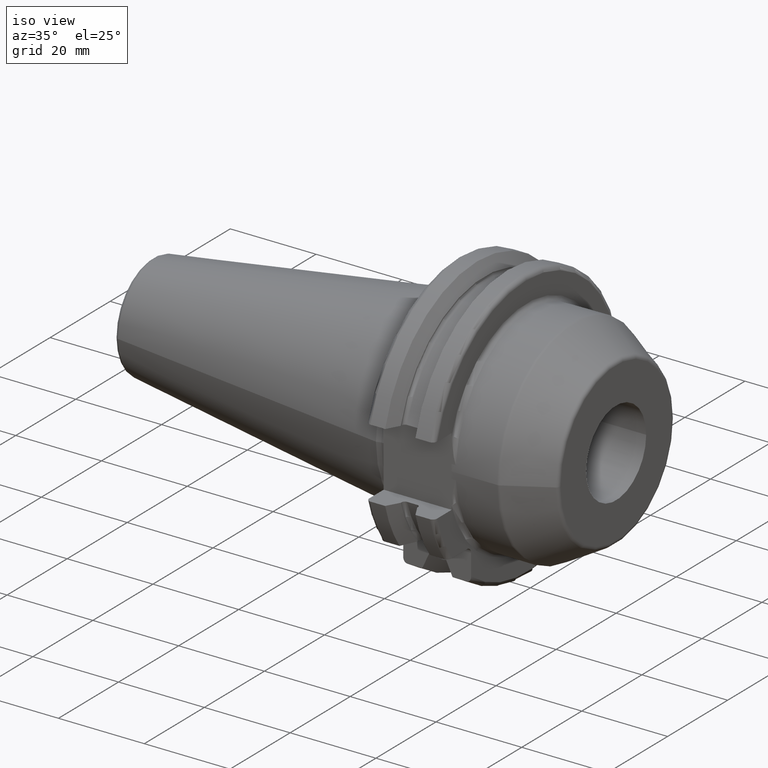
[diagram: clean part render]
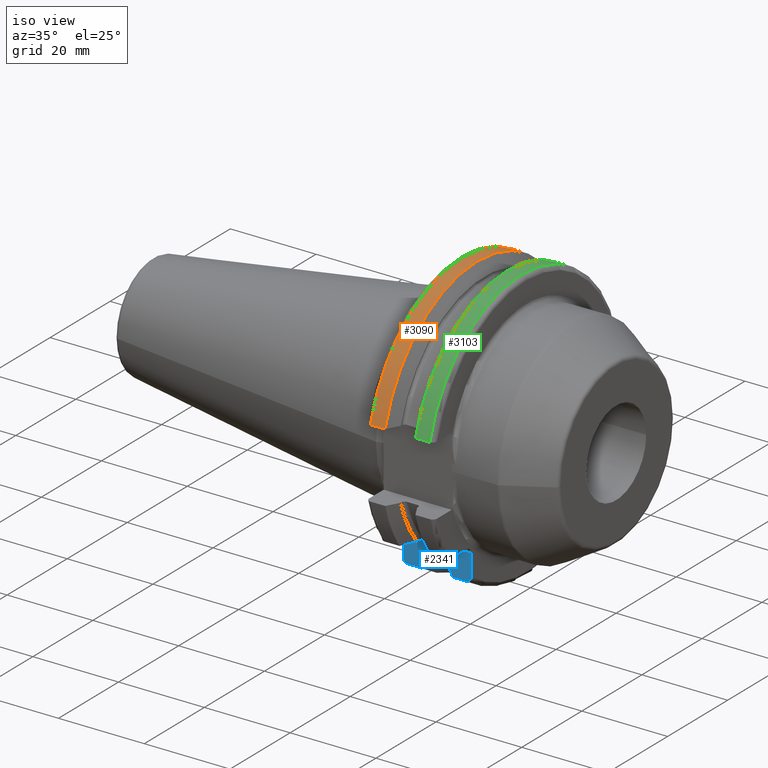
[diagram: same view with three faces highlighted in distinct colors, each labeled with its STEP entity id]
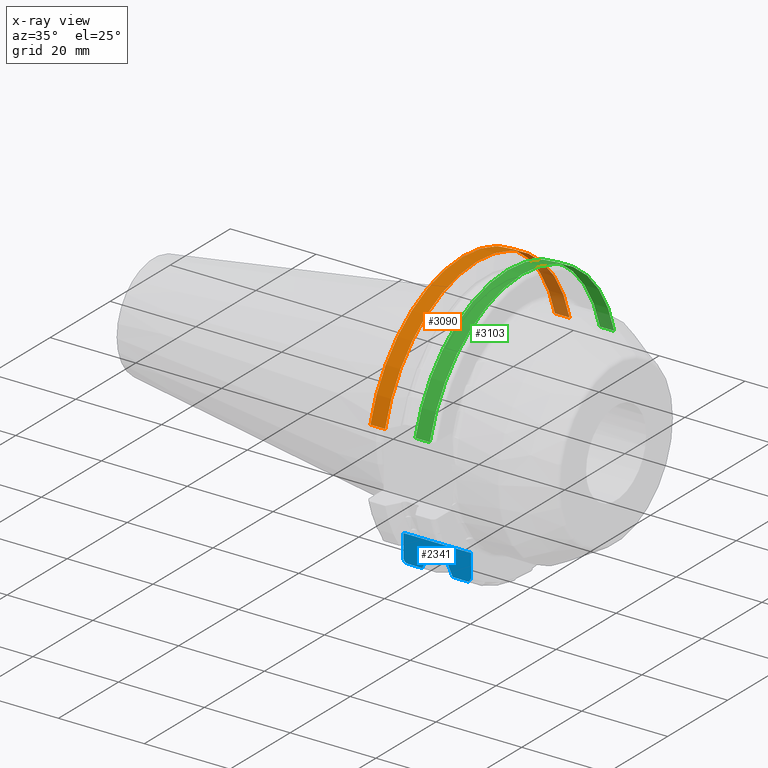
[diagram: x-ray of the same camera — body ghosted, the three highlighted faces saturated]
A machine part, iso view with three faces highlighted in distinct colors.
The next image is the same camera in x-ray (body ghosted, the three faces saturated) — at least one of them is partly hidden behind the body in this view.
Their STEP definitions:

[orange] entity #3090 — the highlighted cylindrical surface (partial cylindrical patch) has radius 31.7625 mm, axis along (1, 0, 0).
#1194=CARTESIAN_POINT('',(7.645946479578E0,3.071231684927E1,8.1E0));
#1206=CARTESIAN_POINT('',(7.645946479578E0,-3.071231684927E1,8.1E0));
#1208=DIRECTION('',(1.E0,0.E0,0.E0));
#1209=VECTOR('',#1208,3.445946479578E0);
#1210=CARTESIAN_POINT('',(4.2E0,3.071231684927E1,8.1E0));
#1211=LINE('',#1210,#1209);
#1212=CARTESIAN_POINT('',(7.645946479578E0,0.E0,0.E0));
#1213=DIRECTION('',(1.E0,0.E0,0.E0));
#1214=DIRECTION('',(0.E0,9.669363825036E-1,2.550177095632E-1));
#1215=AXIS2_PLACEMENT_3D('',#1212,#1213,#1214);
#1217=DIRECTION('',(1.E0,0.E0,0.E0));
#1218=VECTOR('',#1217,3.445946479578E0);
#1219=CARTESIAN_POINT('',(4.2E0,-3.071231684927E1,8.1E0));
#1220=LINE('',#1219,#1218);
#1250=CARTESIAN_POINT('',(4.2E0,0.E0,0.E0));
#1251=DIRECTION('',(1.E0,0.E0,0.E0));
#1252=DIRECTION('',(0.E0,9.669363825036E-1,2.550177095632E-1));
#1253=AXIS2_PLACEMENT_3D('',#1250,#1251,#1252);
#1583=VERTEX_POINT('',#1194);
#1584=VERTEX_POINT('',#1206);
#1603=CARTESIAN_POINT('',(4.2E0,3.071231684927E1,8.1E0));
#1604=VERTEX_POINT('',#1603);
#1607=CARTESIAN_POINT('',(4.2E0,-3.071231684927E1,8.1E0));
#1608=VERTEX_POINT('',#1607);
#3078=CARTESIAN_POINT('',(-7.2615E1,0.E0,0.E0));
#3079=DIRECTION('',(1.E0,0.E0,0.E0));
#3080=DIRECTION('',(0.E0,-1.E0,0.E0));
#3081=AXIS2_PLACEMENT_3D('',#3078,#3079,#3080);
#3082=CYLINDRICAL_SURFACE('',#3081,3.17625E1);
#3083=ORIENTED_EDGE('',*,*,#2440,.T.);
#3084=ORIENTED_EDGE('',*,*,#3073,.T.);
#3085=ORIENTED_EDGE('',*,*,#2977,.F.);
#3087=ORIENTED_EDGE('',*,*,#3086,.F.);
#3088=EDGE_LOOP('',(#3083,#3084,#3085,#3087));
#3089=FACE_OUTER_BOUND('',#3088,.F.);
#3090=ADVANCED_FACE('',(#3089),#3082,.T.);
#1216=CIRCLE('',#1215,3.17625E1);
#1254=CIRCLE('',#1253,3.17625E1);
#2440=EDGE_CURVE('',#1604,#1583,#1211,.T.);
#2977=EDGE_CURVE('',#1608,#1584,#1220,.T.);
#3073=EDGE_CURVE('',#1583,#1584,#1216,.T.);
#3086=EDGE_CURVE('',#1604,#1608,#1254,.T.);

[blue] entity #2341 — the highlighted planar face has unit normal (0, 1, 0).
#284=DIRECTION('',(0.E0,0.E0,1.E0));
#285=VECTOR('',#284,4.990259339464E0);
#286=CARTESIAN_POINT('',(1.905E1,-1.835E1,-2.469025933946E1));
#287=LINE('',#286,#285);
#323=CARTESIAN_POINT('',(1.905E1,-1.835E1,-2.469025933946E1));
#324=CARTESIAN_POINT('',(1.905E1,-1.835E1,-2.477827489148E1));
#325=CARTESIAN_POINT('',(1.903550352933E1,-1.835E1,-2.495194722121E1));
#326=CARTESIAN_POINT('',(1.896629632127E1,-1.835E1,-2.521302960336E1));
#327=CARTESIAN_POINT('',(1.884964259244E1,-1.835E1,-2.545175760021E1));
#328=CARTESIAN_POINT('',(1.869337393206E1,-1.835E1,-2.565125079223E1));
#329=CARTESIAN_POINT('',(1.850440420446E1,-1.835E1,-2.580344847600E1));
#330=CARTESIAN_POINT('',(1.828893233655E1,-1.835E1,-2.590127687802E1));
#331=CARTESIAN_POINT('',(1.813210111876E1,-1.835E1,-2.592554543785E1));
#332=CARTESIAN_POINT('',(1.805E1,-1.835E1,-2.592554543785E1));
#370=DIRECTION('',(1.E0,0.E0,0.E0));
#371=VECTOR('',#370,3.445946479578E0);
#372=CARTESIAN_POINT('',(4.2E0,-1.835E1,-2.592554543785E1));
#373=LINE('',#372,#371);
#388=DIRECTION('',(1.E0,0.E0,0.E0));
#389=VECTOR('',#388,3.345946479578E0);
#390=CARTESIAN_POINT('',(1.470405352042E1,-1.835E1,-2.592554543785E1));
#391=LINE('',#390,#389);
#439=CARTESIAN_POINT('',(4.2E0,-1.835E1,-2.592554543785E1));
#440=CARTESIAN_POINT('',(4.117978515713E0,-1.835E1,-2.592554543785E1));
#441=CARTESIAN_POINT('',(3.961246891048E0,-1.835E1,-2.590134188482E1));
#442=CARTESIAN_POINT('',(3.745539786217E0,-1.835E1,-2.580342617652E1));
#443=CARTESIAN_POINT('',(3.556578831610E0,-1.835E1,-2.565121806264E1));
#444=CARTESIAN_POINT('',(3.400124325915E0,-1.835E1,-2.545142383546E1));
#445=CARTESIAN_POINT('',(3.283526257188E0,-1.835E1,-2.521253976185E1));
#446=CARTESIAN_POINT('',(3.214446436835E0,-1.835E1,-2.495157117356E1));
#447=CARTESIAN_POINT('',(3.2E0,-1.835E1,-2.477812311755E1));
#448=CARTESIAN_POINT('',(3.2E0,-1.835E1,-2.469025933946E1));
#486=DIRECTION('',(0.E0,0.E0,1.E0));
#487=VECTOR('',#486,4.990259339464E0);
#488=CARTESIAN_POINT('',(3.2E0,-1.835E1,-2.469025933946E1));
#489=LINE('',#488,#487);
#547=DIRECTION('',(-1.E0,0.E0,0.E0));
#548=VECTOR('',#547,1.585E1);
#549=CARTESIAN_POINT('',(1.905E1,-1.835E1,-1.97E1));
#550=LINE('',#549,#548);
#563=CARTESIAN_POINT('',(1.30875E1,-1.835E1,-2.240773613162E1));
#564=CARTESIAN_POINT('',(1.325213098463E1,-1.835E1,-2.277629848758E1));
#565=CARTESIAN_POINT('',(1.359130882027E1,-1.835E1,-2.352831190146E1));
#566=CARTESIAN_POINT('',(1.412957926498E1,-1.835E1,-2.469989032362E1));
#567=CARTESIAN_POINT('',(1.450914442104E1,-1.835E1,-2.551194640168E1));
#568=CARTESIAN_POINT('',(1.470405352042E1,-1.835E1,-2.592554543785E1));
#611=DIRECTION('',(0.E0,0.E0,1.E0));
#612=VECTOR('',#611,2.754068371193E-1);
#613=CARTESIAN_POINT('',(1.30875E1,-1.835E1,-2.240773613162E1));
#614=LINE('',#613,#612);
#1110=DIRECTION('',(0.E0,0.E0,1.E0));
#1111=VECTOR('',#1110,2.754068371193E-1);
#1112=CARTESIAN_POINT('',(9.2625E0,-1.835E1,-2.240773613162E1));
#1113=LINE('',#1112,#1111);
#1292=CARTESIAN_POINT('',(9.2625E0,-1.835E1,-2.240773613162E1));
#1293=CARTESIAN_POINT('',(9.097869015375E0,-1.835E1,-2.277629848758E1));
#1294=CARTESIAN_POINT('',(8.758691179732E0,-1.835E1,-2.352831190146E1));
#1295=CARTESIAN_POINT('',(8.220420735022E0,-1.835E1,-2.469989032362E1));
#1296=CARTESIAN_POINT('',(7.840855578955E0,-1.835E1,-2.551194640168E1));
#1297=CARTESIAN_POINT('',(7.645946479578E0,-1.835E1,-2.592554543785E1));
#1329=CARTESIAN_POINT('',(1.30875E1,-1.835E1,-2.213232929450E1));
#1330=CARTESIAN_POINT('',(1.30875E1,-1.835E1,-2.206221408282E1));
#1331=CARTESIAN_POINT('',(1.307623234956E1,-1.835E1,-2.192389012956E1));
#1332=CARTESIAN_POINT('',(1.302304002386E1,-1.835E1,-2.171577032079E1));
#1333=CARTESIAN_POINT('',(1.293464596960E1,-1.835E1,-2.152606845134E1));
#1334=CARTESIAN_POINT('',(1.281674247215E1,-1.835E1,-2.136698869001E1));
#1335=CARTESIAN_POINT('',(1.267543530336E1,-1.835E1,-2.124593918272E1));
#1336=CARTESIAN_POINT('',(1.251391277471E1,-1.835E1,-2.116784088975E1));
#1337=CARTESIAN_POINT('',(1.239797666454E1,-1.835E1,-2.114893614346E1));
#1338=CARTESIAN_POINT('',(1.23375E1,-1.835E1,-2.114893614346E1));
#1376=DIRECTION('',(1.E0,0.E0,0.E0));
#1377=VECTOR('',#1376,2.325E0);
#1378=CARTESIAN_POINT('',(1.00125E1,-1.835E1,-2.114893614346E1));
#1379=LINE('',#1378,#1377);
#1409=CARTESIAN_POINT('',(1.00125E1,-1.835E1,-2.114893614346E1));
#1410=CARTESIAN_POINT('',(9.951993698949E0,-1.835E1,-2.114893614346E1));
#1411=CARTESIAN_POINT('',(9.836000286499E0,-1.835E1,-2.116785770514E1));
#1412=CARTESIAN_POINT('',(9.674360365633E0,-1.835E1,-2.124605529531E1));
#1413=CARTESIAN_POINT('',(9.533017193128E0,-1.835E1,-2.136726141392E1));
#1414=CARTESIAN_POINT('',(9.415344880527E0,-1.835E1,-2.152613059545E1));
#1415=CARTESIAN_POINT('',(9.327039810665E0,-1.835E1,-2.171558232438E1));
#1416=CARTESIAN_POINT('',(9.273817984253E0,-1.835E1,-2.192356855291E1));
#1417=CARTESIAN_POINT('',(9.2625E0,-1.835E1,-2.206207271485E1));
#1418=CARTESIAN_POINT('',(9.2625E0,-1.835E1,-2.213232929450E1));
#1549=CARTESIAN_POINT('',(9.2625E0,-1.835E1,-2.240773613162E1));
#1550=CARTESIAN_POINT('',(9.2625E0,-1.835E1,-2.213232929450E1));
#1551=VERTEX_POINT('',#1549);
#1552=VERTEX_POINT('',#1550);
#1577=CARTESIAN_POINT('',(1.30875E1,-1.835E1,-2.240773613162E1));
#1578=CARTESIAN_POINT('',(1.30875E1,-1.835E1,-2.213232929450E1));
#1579=VERTEX_POINT('',#1577);
#1580=VERTEX_POINT('',#1578);
#1642=CARTESIAN_POINT('',(1.00125E1,-1.835E1,-2.114893614346E1));
#1643=VERTEX_POINT('',#1642);
#1644=CARTESIAN_POINT('',(1.23375E1,-1.835E1,-2.114893614346E1));
#1645=VERTEX_POINT('',#1644);
#1650=CARTESIAN_POINT('',(1.905E1,-1.835E1,-2.469025933946E1));
#1651=VERTEX_POINT('',#1650);
#1652=CARTESIAN_POINT('',(1.805E1,-1.835E1,-2.592554543785E1));
#1653=VERTEX_POINT('',#1652);
#1654=CARTESIAN_POINT('',(4.2E0,-1.835E1,-2.592554543785E1));
#1655=VERTEX_POINT('',#1654);
#1656=CARTESIAN_POINT('',(3.2E0,-1.835E1,-2.469025933946E1));
#1657=VERTEX_POINT('',#1656);
#1662=CARTESIAN_POINT('',(1.905E1,-1.835E1,-1.97E1));
#1663=VERTEX_POINT('',#1662);
#1668=CARTESIAN_POINT('',(3.2E0,-1.835E1,-1.97E1));
#1669=VERTEX_POINT('',#1668);
#1697=VERTEX_POINT('',#568);
#1698=VERTEX_POINT('',#1297);
#2313=CARTESIAN_POINT('',(1.905E1,-1.835E1,-2.835E1));
#2314=DIRECTION('',(0.E0,1.E0,0.E0));
#2315=DIRECTION('',(0.E0,0.E0,1.E0));
#2316=AXIS2_PLACEMENT_3D('',#2313,#2314,#2315);
#2317=PLANE('',#2316);
#2318=ORIENTED_EDGE('',*,*,#2090,.F.);
#2319=ORIENTED_EDGE('',*,*,#2129,.T.);
#2320=ORIENTED_EDGE('',*,*,#2173,.F.);
#2322=ORIENTED_EDGE('',*,*,#2321,.F.);
#2324=ORIENTED_EDGE('',*,*,#2323,.T.);
#2326=ORIENTED_EDGE('',*,*,#2325,.T.);
#2328=ORIENTED_EDGE('',*,*,#2327,.F.);
#2330=ORIENTED_EDGE('',*,*,#2329,.T.);
#2332=ORIENTED_EDGE('',*,*,#2331,.F.);
#2334=ORIENTED_EDGE('',*,*,#2333,.T.);
#2335=ORIENTED_EDGE('',*,*,#2158,.F.);
#2336=ORIENTED_EDGE('',*,*,#2218,.T.);
#2337=ORIENTED_EDGE('',*,*,#2248,.T.);
#2338=ORIENTED_EDGE('',*,*,#2306,.F.);
#2339=EDGE_LOOP('',(#2318,#2319,#2320,#2322,#2324,#2326,#2328,#2330,#2332,#2334,
#2335,#2336,#2337,#2338));
#2340=FACE_OUTER_BOUND('',#2339,.F.);
#2341=ADVANCED_FACE('',(#2340),#2317,.F.);
#333=B_SPLINE_CURVE_WITH_KNOTS('',3,(#323,#324,#325,#326,#327,#328,#329,#330,
#331,#332),.UNSPECIFIED.,.F.,.F.,(4,1,1,1,1,1,1,4),(0.E0,1.428571428571E-1,
2.857142857143E-1,4.285714285714E-1,5.714285714286E-1,7.142857142857E-1,
8.571428571429E-1,1.E0),.UNSPECIFIED.);
#449=B_SPLINE_CURVE_WITH_KNOTS('',3,(#439,#440,#441,#442,#443,#444,#445,#446,
#447,#448),.UNSPECIFIED.,.F.,.F.,(4,1,1,1,1,1,1,4),(0.E0,1.428571428571E-1,
2.857142857143E-1,4.285714285714E-1,5.714285714286E-1,7.142857142857E-1,
8.571428571429E-1,1.E0),.UNSPECIFIED.);
#569=B_SPLINE_CURVE_WITH_KNOTS('',3,(#563,#564,#565,#566,#567,#568),
.UNSPECIFIED.,.F.,.F.,(4,1,1,4),(0.E0,3.333333333333E-1,6.666666666667E-1,1.E0),
.UNSPECIFIED.);
#1298=B_SPLINE_CURVE_WITH_KNOTS('',3,(#1292,#1293,#1294,#1295,#1296,#1297),
.UNSPECIFIED.,.F.,.F.,(4,1,1,4),(0.E0,3.333333333333E-1,6.666666666667E-1,1.E0),
.UNSPECIFIED.);
#1339=B_SPLINE_CURVE_WITH_KNOTS('',3,(#1329,#1330,#1331,#1332,#1333,#1334,#1335,
#1336,#1337,#1338),.UNSPECIFIED.,.F.,.F.,(4,1,1,1,1,1,1,4),(0.E0,
1.428571428571E-1,2.857142857143E-1,4.285714285714E-1,5.714285714286E-1,
7.142857142857E-1,8.571428571429E-1,1.E0),.UNSPECIFIED.);
#1419=B_SPLINE_CURVE_WITH_KNOTS('',3,(#1409,#1410,#1411,#1412,#1413,#1414,#1415,
#1416,#1417,#1418),.UNSPECIFIED.,.F.,.F.,(4,1,1,1,1,1,1,4),(0.E0,
1.428571428571E-1,2.857142857143E-1,4.285714285714E-1,5.714285714286E-1,
7.142857142857E-1,8.571428571429E-1,1.E0),.UNSPECIFIED.);
#2090=EDGE_CURVE('',#1651,#1663,#287,.T.);
#2129=EDGE_CURVE('',#1651,#1653,#333,.T.);
#2158=EDGE_CURVE('',#1655,#1698,#373,.T.);
#2173=EDGE_CURVE('',#1697,#1653,#391,.T.);
#2218=EDGE_CURVE('',#1655,#1657,#449,.T.);
#2248=EDGE_CURVE('',#1657,#1669,#489,.T.);
#2306=EDGE_CURVE('',#1663,#1669,#550,.T.);
#2321=EDGE_CURVE('',#1579,#1697,#569,.T.);
#2323=EDGE_CURVE('',#1579,#1580,#614,.T.);
#2325=EDGE_CURVE('',#1580,#1645,#1339,.T.);
#2327=EDGE_CURVE('',#1643,#1645,#1379,.T.);
#2329=EDGE_CURVE('',#1643,#1552,#1419,.T.);
#2331=EDGE_CURVE('',#1551,#1552,#1113,.T.);
#2333=EDGE_CURVE('',#1551,#1698,#1298,.T.);

[green] entity #3103 — the highlighted cylindrical surface (partial cylindrical patch) has radius 31.7625 mm, axis along (1, 0, 0).
#1221=DIRECTION('',(1.E0,0.E0,0.E0));
#1222=VECTOR('',#1221,3.345946479578E0);
#1223=CARTESIAN_POINT('',(1.470405352042E1,3.071231684927E1,8.1E0));
#1224=LINE('',#1223,#1222);
#1225=CARTESIAN_POINT('',(1.805E1,0.E0,0.E0));
#1226=DIRECTION('',(1.E0,0.E0,0.E0));
#1227=DIRECTION('',(0.E0,9.669363825036E-1,2.550177095632E-1));
#1228=AXIS2_PLACEMENT_3D('',#1225,#1226,#1227);
#1230=DIRECTION('',(1.E0,0.E0,0.E0));
#1231=VECTOR('',#1230,3.345946479578E0);
#1232=CARTESIAN_POINT('',(1.470405352042E1,-3.071231684927E1,8.1E0));
#1233=LINE('',#1232,#1231);
#1234=CARTESIAN_POINT('',(1.470405352042E1,0.E0,0.E0));
#1235=DIRECTION('',(1.E0,0.E0,0.E0));
#1236=DIRECTION('',(0.E0,9.669363825036E-1,2.550177095632E-1));
#1237=AXIS2_PLACEMENT_3D('',#1234,#1235,#1236);
#1266=CARTESIAN_POINT('',(1.470405352042E1,3.071231684927E1,8.1E0));
#1278=CARTESIAN_POINT('',(1.470405352042E1,-3.071231684927E1,8.1E0));
#1581=VERTEX_POINT('',#1266);
#1582=VERTEX_POINT('',#1278);
#1605=CARTESIAN_POINT('',(1.805E1,3.071231684927E1,8.1E0));
#1606=VERTEX_POINT('',#1605);
#1609=CARTESIAN_POINT('',(1.805E1,-3.071231684927E1,8.1E0));
#1610=VERTEX_POINT('',#1609);
#3091=CARTESIAN_POINT('',(-7.2615E1,0.E0,0.E0));
#3092=DIRECTION('',(1.E0,0.E0,0.E0));
#3093=DIRECTION('',(0.E0,-1.E0,0.E0));
#3094=AXIS2_PLACEMENT_3D('',#3091,#3092,#3093);
#3095=CYLINDRICAL_SURFACE('',#3094,3.17625E1);
#3096=ORIENTED_EDGE('',*,*,#2425,.T.);
#3097=ORIENTED_EDGE('',*,*,#2948,.T.);
#3098=ORIENTED_EDGE('',*,*,#2969,.F.);
#3100=ORIENTED_EDGE('',*,*,#3099,.F.);
#3101=EDGE_LOOP('',(#3096,#3097,#3098,#3100));
#3102=FACE_OUTER_BOUND('',#3101,.F.);
#3103=ADVANCED_FACE('',(#3102),#3095,.T.);
#1229=CIRCLE('',#1228,3.17625E1);
#1238=CIRCLE('',#1237,3.17625E1);
#2425=EDGE_CURVE('',#1581,#1606,#1224,.T.);
#2948=EDGE_CURVE('',#1606,#1610,#1229,.T.);
#2969=EDGE_CURVE('',#1582,#1610,#1233,.T.);
#3099=EDGE_CURVE('',#1581,#1582,#1238,.T.);